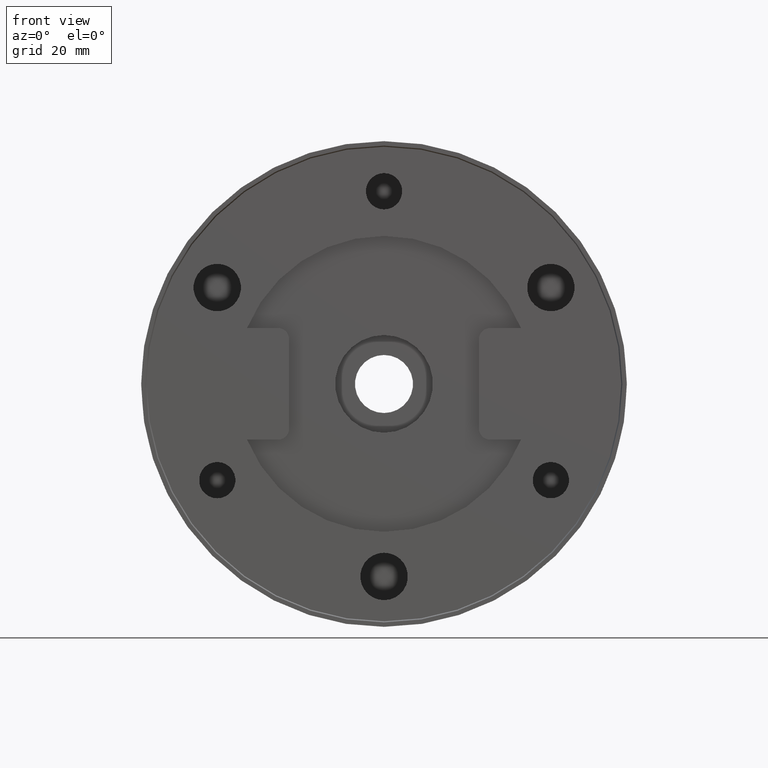
[diagram: clean part render]
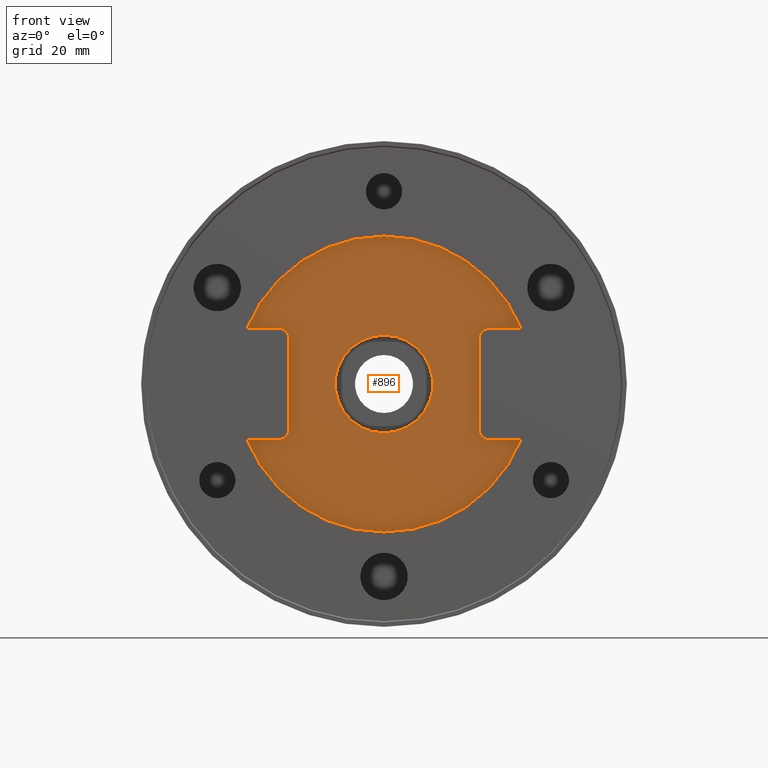
[diagram: same view with one face highlighted and labeled with its STEP entity id]
A machine part, front view. The second image highlights one B-rep face of the part: STEP entity #896.
In plain terms, the highlighted planar face has unit normal (0, -1, 0).
Its self-contained STEP definition (entity closure, byte-faithful):
#14 = DIRECTION ( 'NONE',  ( 0.0000000000000000000, -1.000000000000000000, 0.0000000000000000000 ) ) ;
#65 = LINE ( 'NONE', #139, #3117 ) ;
#75 = AXIS2_PLACEMENT_3D ( 'NONE', #2386, #14, #3196 ) ;
#92 = EDGE_CURVE ( 'NONE', #838, #255, #491, .T. ) ;
#105 = DIRECTION ( 'NONE',  ( -0.0000000000000000000, 1.000000000000000000, -0.0000000000000000000 ) ) ;
#139 = CARTESIAN_POINT ( 'NONE',  ( 19.00000000000001100, 1.500000000000000000, 10.00000000000000000 ) ) ;
#141 = DIRECTION ( 'NONE',  ( -0.0000000000000000000, 1.000000000000000000, -0.0000000000000000000 ) ) ;
#142 = DIRECTION ( 'NONE',  ( -0.0000000000000000000, 1.000000000000000000, -0.0000000000000000000 ) ) ;
#152 = CIRCLE ( 'NONE', #75, 26.50000000000000400 ) ;
#176 = CARTESIAN_POINT ( 'NONE',  ( 1.071565949253934300E-015, 1.500000000000000000, 8.750000000000001800 ) ) ;
#196 = ORIENTED_EDGE ( 'NONE', *, *, #614, .T. ) ;
#218 = EDGE_CURVE ( 'NONE', #1601, #2258, #3165, .T. ) ;
#255 = VERTEX_POINT ( 'NONE', #583 ) ;
#280 = FACE_OUTER_BOUND ( 'NONE', #1683, .T. ) ;
#354 = CARTESIAN_POINT ( 'NONE',  ( -24.54078238361605500, 1.500000000000000000, -10.00000000000000000 ) ) ;
#385 = CARTESIAN_POINT ( 'NONE',  ( 18.99999999999999600, 1.500000000000000000, 8.000000000000000000 ) ) ;
#449 = CARTESIAN_POINT ( 'NONE',  ( 19.00000000000001400, 1.500000000000000000, -9.999999999999998200 ) ) ;
#491 = LINE ( 'NONE', #449, #1706 ) ;
#494 = DIRECTION ( 'NONE',  ( -0.0000000000000000000, 1.000000000000000000, -0.0000000000000000000 ) ) ;
#554 = ORIENTED_EDGE ( 'NONE', *, *, #1168, .T. ) ;
#575 = CIRCLE ( 'NONE', #1441, 2.000000000000001800 ) ;
#583 = CARTESIAN_POINT ( 'NONE',  ( 19.00000000000001400, 1.500000000000000000, -9.999999999999998200 ) ) ;
#614 = EDGE_CURVE ( 'NONE', #3293, #1389, #152, .T. ) ;
#628 = DIRECTION ( 'NONE',  ( -1.000000000000000000, -0.0000000000000000000, 3.130827662725648200E-016 ) ) ;
#686 = CARTESIAN_POINT ( 'NONE',  ( 24.54078238361605500, 1.500000000000000000, -10.00000000000000000 ) ) ;
#706 = ORIENTED_EDGE ( 'NONE', *, *, #809, .T. ) ;
#775 = AXIS2_PLACEMENT_3D ( 'NONE', #2500, #105, #2771 ) ;
#794 = ORIENTED_EDGE ( 'NONE', *, *, #2674, .T. ) ;
#800 = VERTEX_POINT ( 'NONE', #1172 ) ;
#809 = EDGE_CURVE ( 'NONE', #2182, #2827, #2611, .T. ) ;
#836 = EDGE_CURVE ( 'NONE', #255, #2662, #2908, .T. ) ;
#838 = VERTEX_POINT ( 'NONE', #686 ) ;
#855 = EDGE_CURVE ( 'NONE', #1389, #800, #1707, .T. ) ;
#875 = ORIENTED_EDGE ( 'NONE', *, *, #836, .T. ) ;
#896 = ADVANCED_FACE ( 'NONE', ( #280, #1411 ), #2830, .T. ) ;
#921 = CIRCLE ( 'NONE', #2450, 2.000000000000000900 ) ;
#996 = DIRECTION ( 'NONE',  ( 0.0000000000000000000, 0.0000000000000000000, 1.000000000000000000 ) ) ;
#1005 = CARTESIAN_POINT ( 'NONE',  ( -24.54078238361605500, 1.500000000000000000, 9.999999999999996400 ) ) ;
#1028 = EDGE_CURVE ( 'NONE', #1801, #838, #1150, .T. ) ;
#1030 = VERTEX_POINT ( 'NONE', #2745 ) ;
#1033 = VERTEX_POINT ( 'NONE', #2475 ) ;
#1058 = DIRECTION ( 'NONE',  ( 0.0000000000000000000, -0.0000000000000000000, -1.000000000000000000 ) ) ;
#1150 = CIRCLE ( 'NONE', #1859, 26.50000000000000400 ) ;
#1168 = EDGE_CURVE ( 'NONE', #1033, #3293, #65, .T. ) ;
#1172 = CARTESIAN_POINT ( 'NONE',  ( -19.00000000000001100, 1.500000000000000000, 10.00000000000000400 ) ) ;
#1224 = EDGE_CURVE ( 'NONE', #1030, #1033, #575, .T. ) ;
#1241 = DIRECTION ( 'NONE',  ( -1.000000000000000000, -0.0000000000000000000, 3.130827662725650200E-016 ) ) ;
#1316 = AXIS2_PLACEMENT_3D ( 'NONE', #3350, #141, #2270 ) ;
#1389 = VERTEX_POINT ( 'NONE', #1005 ) ;
#1391 = DIRECTION ( 'NONE',  ( -4.336808689942025100E-016, -0.0000000000000000000, 1.000000000000000000 ) ) ;
#1400 = CARTESIAN_POINT ( 'NONE',  ( -16.99999999999999300, 1.500000000000000000, 7.999999999999989300 ) ) ;
#1411 = FACE_BOUND ( 'NONE', #2172, .T. ) ;
#1440 = DIRECTION ( 'NONE',  ( 0.0000000000000000000, 0.0000000000000000000, -1.000000000000000000 ) ) ;
#1441 = AXIS2_PLACEMENT_3D ( 'NONE', #385, #3366, #1764 ) ;
#1601 = VERTEX_POINT ( 'NONE', #1400 ) ;
#1608 = VERTEX_POINT ( 'NONE', #1974 ) ;
#1679 = EDGE_CURVE ( 'NONE', #2226, #1608, #3113, .T. ) ;
#1683 = EDGE_LOOP ( 'NONE', ( #794, #2205, #2970, #875, #2870, #1972, #554, #196, #1998, #3344, #2948, #2897, #2486 ) ) ;
#1706 = VECTOR ( 'NONE', #1241, 1000.000000000000000 ) ;
#1707 = LINE ( 'NONE', #2524, #2120 ) ;
#1764 = DIRECTION ( 'NONE',  ( 0.0000000000000000000, 0.0000000000000000000, 1.000000000000000000 ) ) ;
#1773 = DIRECTION ( 'NONE',  ( 0.0000000000000000000, 0.0000000000000000000, -1.000000000000000000 ) ) ;
#1801 = VERTEX_POINT ( 'NONE', #1904 ) ;
#1822 = AXIS2_PLACEMENT_3D ( 'NONE', #2604, #494, #2588 ) ;
#1859 = AXIS2_PLACEMENT_3D ( 'NONE', #1967, #3006, #2462 ) ;
#1904 = CARTESIAN_POINT ( 'NONE',  ( 0.0000000000000000000, 1.500000000000000000, -26.50000000000000400 ) ) ;
#1914 = CARTESIAN_POINT ( 'NONE',  ( -16.99999999999999300, 1.500000000000000000, 7.999999999999989300 ) ) ;
#1940 = CARTESIAN_POINT ( 'NONE',  ( 17.00000000000000000, 1.500000000000000000, -7.999999999999984900 ) ) ;
#1967 = CARTESIAN_POINT ( 'NONE',  ( 0.0000000000000000000, 1.500000000000000000, 0.0000000000000000000 ) ) ;
#1972 = ORIENTED_EDGE ( 'NONE', *, *, #1224, .T. ) ;
#1974 = CARTESIAN_POINT ( 'NONE',  ( -24.54078238361605500, 1.500000000000000000, -10.00000000000000000 ) ) ;
#1983 = DIRECTION ( 'NONE',  ( 1.000000000000000000, 0.0000000000000000000, 0.0000000000000000000 ) ) ;
#1990 = VECTOR ( 'NONE', #628, 1000.000000000000000 ) ;
#1998 = ORIENTED_EDGE ( 'NONE', *, *, #855, .T. ) ;
#2014 = CARTESIAN_POINT ( 'NONE',  ( 0.0000000000000000000, 1.500000000000000000, 0.0000000000000000000 ) ) ;
#2025 = VECTOR ( 'NONE', #1391, 1000.000000000000000 ) ;
#2063 = CARTESIAN_POINT ( 'NONE',  ( -16.99999999999999300, 1.500000000000000000, -7.999999999999988500 ) ) ;
#2065 = EDGE_CURVE ( 'NONE', #2662, #1030, #3200, .T. ) ;
#2079 = DIRECTION ( 'NONE',  ( -0.0000000000000000000, 1.000000000000000000, -0.0000000000000000000 ) ) ;
#2120 = VECTOR ( 'NONE', #3303, 1000.000000000000000 ) ;
#2156 = CIRCLE ( 'NONE', #3404, 2.000000000000000900 ) ;
#2169 = DIRECTION ( 'NONE',  ( 0.0000000000000000000, -0.0000000000000000000, -1.000000000000000000 ) ) ;
#2172 = EDGE_LOOP ( 'NONE', ( #2994, #706 ) ) ;
#2182 = VERTEX_POINT ( 'NONE', #176 ) ;
#2184 = EDGE_CURVE ( 'NONE', #800, #1601, #2156, .T. ) ;
#2199 = VECTOR ( 'NONE', #2169, 1000.000000000000000 ) ;
#2205 = ORIENTED_EDGE ( 'NONE', *, *, #1028, .T. ) ;
#2226 = VERTEX_POINT ( 'NONE', #2293 ) ;
#2258 = VERTEX_POINT ( 'NONE', #2063 ) ;
#2270 = DIRECTION ( 'NONE',  ( 0.0000000000000000000, 0.0000000000000000000, -1.000000000000000000 ) ) ;
#2293 = CARTESIAN_POINT ( 'NONE',  ( -19.00000000000001100, 1.500000000000000000, -10.00000000000000200 ) ) ;
#2339 = CARTESIAN_POINT ( 'NONE',  ( 24.54078238361605500, 1.500000000000000000, 10.00000000000000000 ) ) ;
#2386 = CARTESIAN_POINT ( 'NONE',  ( 0.0000000000000000000, 1.500000000000000000, 0.0000000000000000000 ) ) ;
#2450 = AXIS2_PLACEMENT_3D ( 'NONE', #2843, #2079, #996 ) ;
#2462 = DIRECTION ( 'NONE',  ( 0.0000000000000000000, 0.0000000000000000000, -1.000000000000000000 ) ) ;
#2475 = CARTESIAN_POINT ( 'NONE',  ( 19.00000000000001100, 1.500000000000000000, 10.00000000000000200 ) ) ;
#2486 = ORIENTED_EDGE ( 'NONE', *, *, #1679, .T. ) ;
#2499 = CIRCLE ( 'NONE', #1822, 8.750000000000001800 ) ;
#2500 = CARTESIAN_POINT ( 'NONE',  ( 0.0000000000000000000, 1.500000000000000000, 0.0000000000000000000 ) ) ;
#2520 = DIRECTION ( 'NONE',  ( 0.0000000000000000000, -1.000000000000000000, 0.0000000000000000000 ) ) ;
#2524 = CARTESIAN_POINT ( 'NONE',  ( -24.54078238361605500, 1.500000000000000000, 10.00000000000000000 ) ) ;
#2588 = DIRECTION ( 'NONE',  ( 0.0000000000000000000, 0.0000000000000000000, -1.000000000000000000 ) ) ;
#2604 = CARTESIAN_POINT ( 'NONE',  ( 0.0000000000000000000, 1.500000000000000000, 0.0000000000000000000 ) ) ;
#2609 = AXIS2_PLACEMENT_3D ( 'NONE', #2014, #2520, #1440 ) ;
#2611 = CIRCLE ( 'NONE', #775, 8.750000000000001800 ) ;
#2662 = VERTEX_POINT ( 'NONE', #1940 ) ;
#2674 = EDGE_CURVE ( 'NONE', #1608, #1801, #2719, .T. ) ;
#2710 = CARTESIAN_POINT ( 'NONE',  ( 16.99999999999999300, 1.500000000000000000, 7.999999999999986700 ) ) ;
#2719 = CIRCLE ( 'NONE', #2609, 26.50000000000000400 ) ;
#2745 = CARTESIAN_POINT ( 'NONE',  ( 16.99999999999999300, 1.500000000000000000, 7.999999999999986700 ) ) ;
#2771 = DIRECTION ( 'NONE',  ( 0.0000000000000000000, 0.0000000000000000000, -1.000000000000000000 ) ) ;
#2807 = CARTESIAN_POINT ( 'NONE',  ( -18.99999999999999600, 1.500000000000000000, 8.000000000000003600 ) ) ;
#2827 = VERTEX_POINT ( 'NONE', #3410 ) ;
#2830 = PLANE ( 'NONE',  #2984 ) ;
#2843 = CARTESIAN_POINT ( 'NONE',  ( -18.99999999999999600, 1.500000000000000000, -8.000000000000001800 ) ) ;
#2870 = ORIENTED_EDGE ( 'NONE', *, *, #2065, .T. ) ;
#2897 = ORIENTED_EDGE ( 'NONE', *, *, #3279, .T. ) ;
#2908 = CIRCLE ( 'NONE', #1316, 2.000000000000000000 ) ;
#2916 = DIRECTION ( 'NONE',  ( 0.0000000000000000000, -1.000000000000000000, 0.0000000000000000000 ) ) ;
#2948 = ORIENTED_EDGE ( 'NONE', *, *, #218, .T. ) ;
#2970 = ORIENTED_EDGE ( 'NONE', *, *, #92, .T. ) ;
#2984 = AXIS2_PLACEMENT_3D ( 'NONE', #3102, #2916, #1058 ) ;
#2994 = ORIENTED_EDGE ( 'NONE', *, *, #3275, .T. ) ;
#3006 = DIRECTION ( 'NONE',  ( 0.0000000000000000000, -1.000000000000000000, 0.0000000000000000000 ) ) ;
#3102 = CARTESIAN_POINT ( 'NONE',  ( 0.0000000000000000000, 1.500000000000000000, 0.0000000000000000000 ) ) ;
#3113 = LINE ( 'NONE', #354, #1990 ) ;
#3117 = VECTOR ( 'NONE', #1983, 1000.000000000000000 ) ;
#3165 = LINE ( 'NONE', #1914, #2199 ) ;
#3196 = DIRECTION ( 'NONE',  ( 0.0000000000000000000, 0.0000000000000000000, -1.000000000000000000 ) ) ;
#3200 = LINE ( 'NONE', #2710, #2025 ) ;
#3275 = EDGE_CURVE ( 'NONE', #2827, #2182, #2499, .T. ) ;
#3279 = EDGE_CURVE ( 'NONE', #2258, #2226, #921, .T. ) ;
#3293 = VERTEX_POINT ( 'NONE', #2339 ) ;
#3303 = DIRECTION ( 'NONE',  ( 1.000000000000000000, 0.0000000000000000000, 6.261655325451296400E-016 ) ) ;
#3344 = ORIENTED_EDGE ( 'NONE', *, *, #2184, .T. ) ;
#3350 = CARTESIAN_POINT ( 'NONE',  ( 19.00000000000000000, 1.500000000000000000, -7.999999999999996400 ) ) ;
#3366 = DIRECTION ( 'NONE',  ( -0.0000000000000000000, 1.000000000000000000, -0.0000000000000000000 ) ) ;
#3404 = AXIS2_PLACEMENT_3D ( 'NONE', #2807, #142, #1773 ) ;
#3410 = CARTESIAN_POINT ( 'NONE',  ( 0.0000000000000000000, 1.500000000000000000, -8.750000000000001800 ) ) ;